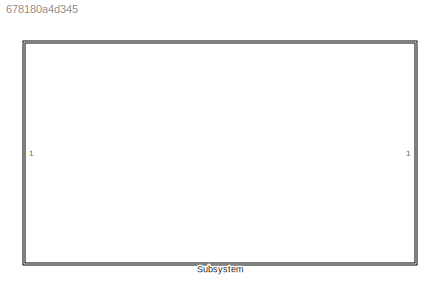
MODEL slx_678180a4d345
KIND model
CONFIG AbsTol = auto
CONFIG EnableMultiTasking = off
CONFIG FixedStep = auto
CONFIG MaxStep = auto
CONFIG MinStep = auto
CONFIG RelTol = 1e-3
CONFIG SampleTimeConstraint = Unconstrained
CONFIG SolverName = VariableStepAuto
CONFIG StartTime = 0.0
CONFIG StopTime = 0.5
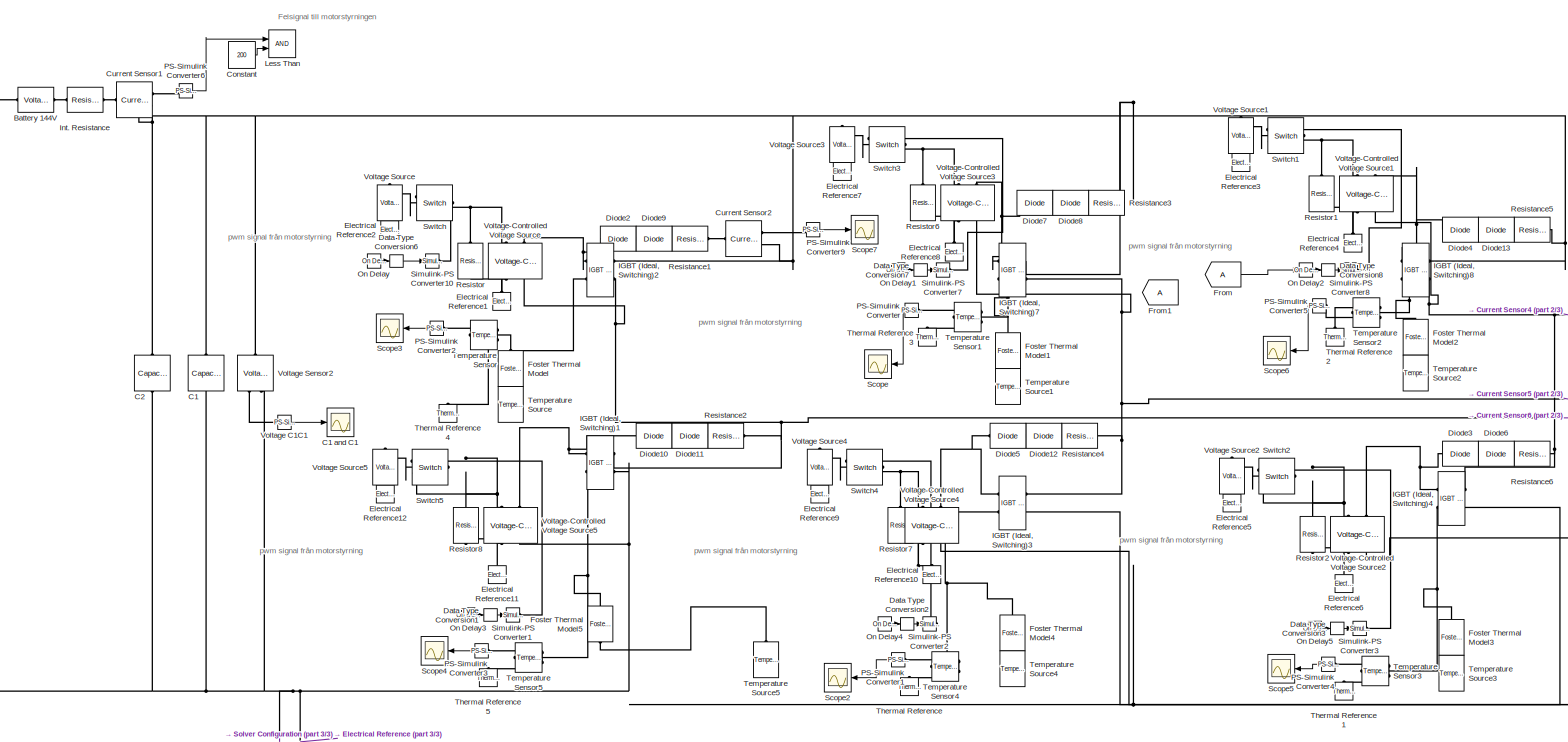
[diagram: Subsystem - part 1/3, most of the canvas]
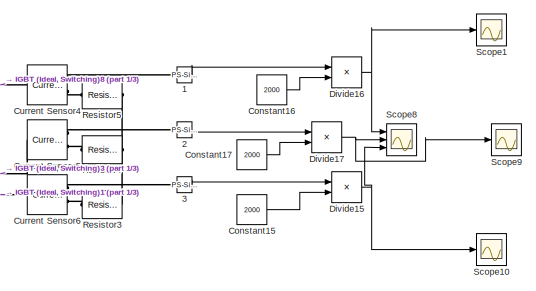
[diagram: Subsystem - part 2/3, middle right region]
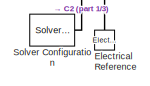
[diagram: Subsystem - part 3/3, bottom left region]
BLOCK [SubSystem] Subsystem
  Ports = []
  RequestExecContextInheritance = off
BLOCK [Reference] Subsystem/ Resistance1  REF=fl_lib/Electrical/Electrical Elements/Resistor
  Ports = [0, 0, 0, 0, 0, 1, 1]
  SourceBlock = fl_lib/Electrical/Electrical Elements/Resistor
  SourceProductBaseCode = SS
  SourceType = Resistor
BLOCK [Reference] Subsystem/ Resistance2  REF=fl_lib/Electrical/Electrical Elements/Resistor
  Ports = [0, 0, 0, 0, 0, 1, 1]
  SourceBlock = fl_lib/Electrical/Electrical Elements/Resistor
  SourceProductBaseCode = SS
  SourceType = Resistor
BLOCK [Reference] Subsystem/ Resistance3  REF=fl_lib/Electrical/Electrical Elements/Resistor
  Ports = [0, 0, 0, 0, 0, 1, 1]
  SourceBlock = fl_lib/Electrical/Electrical Elements/Resistor
  SourceProductBaseCode = SS
  SourceType = Resistor
BLOCK [Reference] Subsystem/ Resistance4  REF=fl_lib/Electrical/Electrical Elements/Resistor
  Ports = [0, 0, 0, 0, 0, 1, 1]
  SourceBlock = fl_lib/Electrical/Electrical Elements/Resistor
  SourceProductBaseCode = SS
  SourceType = Resistor
BLOCK [Reference] Subsystem/ Resistance5  REF=fl_lib/Electrical/Electrical Elements/Resistor
  Ports = [0, 0, 0, 0, 0, 1, 1]
  SourceBlock = fl_lib/Electrical/Electrical Elements/Resistor
  SourceProductBaseCode = SS
  SourceType = Resistor
BLOCK [Reference] Subsystem/ Resistance6  REF=fl_lib/Electrical/Electrical Elements/Resistor
  Ports = [0, 0, 0, 0, 0, 1, 1]
  SourceBlock = fl_lib/Electrical/Electrical Elements/Resistor
  SourceProductBaseCode = SS
  SourceType = Resistor
BLOCK [Reference] Subsystem/1  REF=nesl_utility/PS-Simulink
Converter
  Ports = [0, 1, 0, 0, 0, 1]
  SourceBlock = nesl_utility/PS-Simulink\nConverter
  SourceProductBaseCode = SS
  SourceType = PS-Simulink\nConverter
BLOCK [Reference] Subsystem/2  REF=nesl_utility/PS-Simulink
Converter
  Ports = [0, 1, 0, 0, 0, 1]
  SourceBlock = nesl_utility/PS-Simulink\nConverter
  SourceProductBaseCode = SS
  SourceType = PS-Simulink\nConverter
BLOCK [Reference] Subsystem/3  REF=nesl_utility/PS-Simulink
Converter
  Ports = [0, 1, 0, 0, 0, 1]
  SourceBlock = nesl_utility/PS-Simulink\nConverter
  SourceProductBaseCode = SS
  SourceType = PS-Simulink\nConverter
BLOCK [Reference] Subsystem/Battery 144V  REF=ee_lib/Sources/Voltage Source
  Ports = [0, 0, 0, 0, 0, 1, 1]
  SourceBlock = ee_lib/Sources/Voltage Source
  SourceProductBaseCode = PS
  SourceType = Voltage Source
BLOCK [Reference] Subsystem/C1  REF=ee_lib/Passive/Capacitor
  NameLocation = left
  Ports = [0, 0, 0, 0, 0, 1, 1]
  SourceBlock = ee_lib/Passive/Capacitor
  SourceProductBaseCode = PS
  SourceType = Capacitor
BLOCK [Scope] Subsystem/C1 and C1
  Floating = off
  NumInputPorts = 1
  Ports = [1]
  ScopeSpecificationString = Simulink.scopes.TimeScopeBlockCfg('CurrentConfiguration', extmgr.ConfigurationSet(extmgr.Configuration('Core','General UI',true),extmgr.Configuration('Core','Source UI',true),extmgr.Configuration('Sources','WiredSimulink',true,'DataLoggingVariableName','ScopeData1'),extmgr.Configuration('Visuals','Time Domain',true,'SerializedDisplays',{struct('MinYLimReal','33.74955','MaxYLimReal','232.10044','YL...<+1479ch>
BLOCK [Reference] Subsystem/C2  REF=ee_lib/Passive/Capacitor
  NameLocation = left
  Ports = [0, 0, 0, 0, 0, 1, 1]
  SourceBlock = ee_lib/Passive/Capacitor
  SourceProductBaseCode = PS
  SourceType = Capacitor
BLOCK [Constant] Subsystem/Constant
  Value = 200
BLOCK [Constant] Subsystem/Constant15
  Value = 2000
BLOCK [Constant] Subsystem/Constant16
  Value = 2000
BLOCK [Constant] Subsystem/Constant17
  Value = 2000
BLOCK [Reference] Subsystem/Current Sensor1  REF=fl_lib/Electrical/Electrical Sensors/Current Sensor
  Ports = [0, 0, 0, 0, 0, 1, 2]
  SourceBlock = fl_lib/Electrical/Electrical Sensors/Current Sensor
  SourceProductBaseCode = SS
  SourceType = Current Sensor
BLOCK [Reference] Subsystem/Current Sensor2  REF=fl_lib/Electrical/Electrical Sensors/Current Sensor
  Ports = [0, 0, 0, 0, 0, 1, 2]
  SourceBlock = fl_lib/Electrical/Electrical Sensors/Current Sensor
  SourceProductBaseCode = SS
  SourceType = Current Sensor
BLOCK [Reference] Subsystem/Current Sensor4  REF=fl_lib/Electrical/Electrical Sensors/Current Sensor
  Ports = [0, 0, 0, 0, 0, 1, 2]
  SourceBlock = fl_lib/Electrical/Electrical Sensors/Current Sensor
  SourceProductBaseCode = SS
  SourceType = Current Sensor
BLOCK [Reference] Subsystem/Current Sensor5  REF=fl_lib/Electrical/Electrical Sensors/Current Sensor
  Ports = [0, 0, 0, 0, 0, 1, 2]
  SourceBlock = fl_lib/Electrical/Electrical Sensors/Current Sensor
  SourceProductBaseCode = SS
  SourceType = Current Sensor
BLOCK [Reference] Subsystem/Current Sensor6  REF=fl_lib/Electrical/Electrical Sensors/Current Sensor
  Ports = [0, 0, 0, 0, 0, 1, 2]
  SourceBlock = fl_lib/Electrical/Electrical Sensors/Current Sensor
  SourceProductBaseCode = SS
  SourceType = Current Sensor
BLOCK [DataTypeConversion] Subsystem/Data Type Conversion1
  OutDataTypeStr = double
  RndMeth = Floor
  SaturateOnIntegerOverflow = off
BLOCK [DataTypeConversion] Subsystem/Data Type Conversion2
  OutDataTypeStr = double
  RndMeth = Floor
  SaturateOnIntegerOverflow = off
BLOCK [DataTypeConversion] Subsystem/Data Type Conversion3
  OutDataTypeStr = double
  RndMeth = Floor
  SaturateOnIntegerOverflow = off
BLOCK [DataTypeConversion] Subsystem/Data Type Conversion6
  OutDataTypeStr = double
  RndMeth = Floor
  SaturateOnIntegerOverflow = off
BLOCK [DataTypeConversion] Subsystem/Data Type Conversion7
  OutDataTypeStr = double
  RndMeth = Floor
  SaturateOnIntegerOverflow = off
BLOCK [DataTypeConversion] Subsystem/Data Type Conversion8
  OutDataTypeStr = double
  RndMeth = Floor
  SaturateOnIntegerOverflow = off
BLOCK [Reference] Subsystem/Diode10  REF=ee_lib/Semiconductors &
Converters/Diode
  Ports = [0, 0, 0, 0, 0, 1, 1]
  SourceBlock = ee_lib/Semiconductors &\nConverters/Diode
  SourceProductBaseCode = PS
  SourceType = Diode
BLOCK [Reference] Subsystem/Diode11  REF=ee_lib/Semiconductors &
Converters/Diode
  NameLocation = top
  Ports = [0, 0, 0, 0, 0, 1, 1]
  SourceBlock = ee_lib/Semiconductors &\nConverters/Diode
  SourceProductBaseCode = PS
  SourceType = Diode
BLOCK [Reference] Subsystem/Diode12  REF=ee_lib/Semiconductors &
Converters/Diode
  NameLocation = top
  Ports = [0, 0, 0, 0, 0, 1, 1]
  SourceBlock = ee_lib/Semiconductors &\nConverters/Diode
  SourceProductBaseCode = PS
  SourceType = Diode
BLOCK [Reference] Subsystem/Diode13  REF=ee_lib/Semiconductors &
Converters/Diode
  NameLocation = top
  Ports = [0, 0, 0, 0, 0, 1, 1]
  SourceBlock = ee_lib/Semiconductors &\nConverters/Diode
  SourceProductBaseCode = PS
  SourceType = Diode
BLOCK [Reference] Subsystem/Diode2  REF=ee_lib/Semiconductors &
Converters/Diode
  Ports = [0, 0, 0, 0, 0, 1, 1]
  SourceBlock = ee_lib/Semiconductors &\nConverters/Diode
  SourceProductBaseCode = PS
  SourceType = Diode
BLOCK [Reference] Subsystem/Diode3  REF=ee_lib/Semiconductors &
Converters/Diode
  Ports = [0, 0, 0, 0, 0, 1, 1]
  SourceBlock = ee_lib/Semiconductors &\nConverters/Diode
  SourceProductBaseCode = PS
  SourceType = Diode
BLOCK [Reference] Subsystem/Diode4  REF=ee_lib/Semiconductors &
Converters/Diode
  Ports = [0, 0, 0, 0, 0, 1, 1]
  SourceBlock = ee_lib/Semiconductors &\nConverters/Diode
  SourceProductBaseCode = PS
  SourceType = Diode
BLOCK [Reference] Subsystem/Diode5  REF=ee_lib/Semiconductors &
Converters/Diode
  Ports = [0, 0, 0, 0, 0, 1, 1]
  SourceBlock = ee_lib/Semiconductors &\nConverters/Diode
  SourceProductBaseCode = PS
  SourceType = Diode
BLOCK [Reference] Subsystem/Diode6  REF=ee_lib/Semiconductors &
Converters/Diode
  NameLocation = top
  Ports = [0, 0, 0, 0, 0, 1, 1]
  SourceBlock = ee_lib/Semiconductors &\nConverters/Diode
  SourceProductBaseCode = PS
  SourceType = Diode
BLOCK [Reference] Subsystem/Diode7  REF=ee_lib/Semiconductors &
Converters/Diode
  Ports = [0, 0, 0, 0, 0, 1, 1]
  SourceBlock = ee_lib/Semiconductors &\nConverters/Diode
  SourceProductBaseCode = PS
  SourceType = Diode
BLOCK [Reference] Subsystem/Diode8  REF=ee_lib/Semiconductors &
Converters/Diode
  NameLocation = top
  Ports = [0, 0, 0, 0, 0, 1, 1]
  SourceBlock = ee_lib/Semiconductors &\nConverters/Diode
  SourceProductBaseCode = PS
  SourceType = Diode
BLOCK [Reference] Subsystem/Diode9  REF=ee_lib/Semiconductors &
Converters/Diode
  NameLocation = top
  Ports = [0, 0, 0, 0, 0, 1, 1]
  SourceBlock = ee_lib/Semiconductors &\nConverters/Diode
  SourceProductBaseCode = PS
  SourceType = Diode
BLOCK [Product] Subsystem/Divide15
  Inputs = */
  Ports = [2, 1]
BLOCK [Product] Subsystem/Divide16
  Inputs = */
  Ports = [2, 1]
BLOCK [Product] Subsystem/Divide17
  Inputs = */
  Ports = [2, 1]
BLOCK [Reference] Subsystem/Electrical Reference  REF=fl_lib/Electrical/Electrical Elements/Electrical Reference
  NameLocation = right
  Ports = [0, 0, 0, 0, 0, 1]
  SourceBlock = fl_lib/Electrical/Electrical Elements/Electrical Reference
  SourceProductBaseCode = SS
  SourceType = Electrical Reference
BLOCK [Reference] Subsystem/Electrical Reference1  REF=fl_lib/Electrical/Electrical Elements/Electrical Reference
  NameLocation = right
  Ports = [0, 0, 0, 0, 0, 1]
  SourceBlock = fl_lib/Electrical/Electrical Elements/Electrical Reference
  SourceProductBaseCode = SS
  SourceType = Electrical Reference
BLOCK [Reference] Subsystem/Electrical Reference10  REF=fl_lib/Electrical/Electrical Elements/Electrical Reference
  NameLocation = right
  Ports = [0, 0, 0, 0, 0, 1]
  SourceBlock = fl_lib/Electrical/Electrical Elements/Electrical Reference
  SourceProductBaseCode = SS
  SourceType = Electrical Reference
BLOCK [Reference] Subsystem/Electrical Reference11  REF=fl_lib/Electrical/Electrical Elements/Electrical Reference
  NameLocation = right
  Ports = [0, 0, 0, 0, 0, 1]
  SourceBlock = fl_lib/Electrical/Electrical Elements/Electrical Reference
  SourceProductBaseCode = SS
  SourceType = Electrical Reference
BLOCK [Reference] Subsystem/Electrical Reference12  REF=fl_lib/Electrical/Electrical Elements/Electrical Reference
  NameLocation = right
  Ports = [0, 0, 0, 0, 0, 1]
  SourceBlock = fl_lib/Electrical/Electrical Elements/Electrical Reference
  SourceProductBaseCode = SS
  SourceType = Electrical Reference
BLOCK [Reference] Subsystem/Electrical Reference2  REF=fl_lib/Electrical/Electrical Elements/Electrical Reference
  NameLocation = right
  Ports = [0, 0, 0, 0, 0, 1]
  SourceBlock = fl_lib/Electrical/Electrical Elements/Electrical Reference
  SourceProductBaseCode = SS
  SourceType = Electrical Reference
BLOCK [Reference] Subsystem/Electrical Reference3  REF=fl_lib/Electrical/Electrical Elements/Electrical Reference
  NameLocation = right
  Ports = [0, 0, 0, 0, 0, 1]
  SourceBlock = fl_lib/Electrical/Electrical Elements/Electrical Reference
  SourceProductBaseCode = SS
  SourceType = Electrical Reference
BLOCK [Reference] Subsystem/Electrical Reference4  REF=fl_lib/Electrical/Electrical Elements/Electrical Reference
  NameLocation = right
  Ports = [0, 0, 0, 0, 0, 1]
  SourceBlock = fl_lib/Electrical/Electrical Elements/Electrical Reference
  SourceProductBaseCode = SS
  SourceType = Electrical Reference
BLOCK [Reference] Subsystem/Electrical Reference5  REF=fl_lib/Electrical/Electrical Elements/Electrical Reference
  NameLocation = right
  Ports = [0, 0, 0, 0, 0, 1]
  SourceBlock = fl_lib/Electrical/Electrical Elements/Electrical Reference
  SourceProductBaseCode = SS
  SourceType = Electrical Reference
BLOCK [Reference] Subsystem/Electrical Reference6  REF=fl_lib/Electrical/Electrical Elements/Electrical Reference
  NameLocation = right
  Ports = [0, 0, 0, 0, 0, 1]
  SourceBlock = fl_lib/Electrical/Electrical Elements/Electrical Reference
  SourceProductBaseCode = SS
  SourceType = Electrical Reference
BLOCK [Reference] Subsystem/Electrical Reference7  REF=fl_lib/Electrical/Electrical Elements/Electrical Reference
  NameLocation = right
  Ports = [0, 0, 0, 0, 0, 1]
  SourceBlock = fl_lib/Electrical/Electrical Elements/Electrical Reference
  SourceProductBaseCode = SS
  SourceType = Electrical Reference
BLOCK [Reference] Subsystem/Electrical Reference8  REF=fl_lib/Electrical/Electrical Elements/Electrical Reference
  NameLocation = right
  Ports = [0, 0, 0, 0, 0, 1]
  SourceBlock = fl_lib/Electrical/Electrical Elements/Electrical Reference
  SourceProductBaseCode = SS
  SourceType = Electrical Reference
BLOCK [Reference] Subsystem/Electrical Reference9  REF=fl_lib/Electrical/Electrical Elements/Electrical Reference
  NameLocation = right
  Ports = [0, 0, 0, 0, 0, 1]
  SourceBlock = fl_lib/Electrical/Electrical Elements/Electrical Reference
  SourceProductBaseCode = SS
  SourceType = Electrical Reference
BLOCK [Reference] Subsystem/Foster Thermal Model  REF=ee_lib/Passive/Thermal/Foster Thermal Model
  NameLocation = left
  Ports = [0, 0, 0, 0, 0, 1, 1]
  SourceBlock = ee_lib/Passive/Thermal/Foster Thermal Model
  SourceProductBaseCode = PS
  SourceType = Foster Thermal Model
BLOCK [Reference] Subsystem/Foster Thermal Model1  REF=ee_lib/Passive/Thermal/Foster Thermal Model
  NameLocation = left
  Ports = [0, 0, 0, 0, 0, 1, 1]
  SourceBlock = ee_lib/Passive/Thermal/Foster Thermal Model
  SourceProductBaseCode = PS
  SourceType = Foster Thermal Model
BLOCK [Reference] Subsystem/Foster Thermal Model2  REF=ee_lib/Passive/Thermal/Foster Thermal Model
  NameLocation = left
  Ports = [0, 0, 0, 0, 0, 1, 1]
  SourceBlock = ee_lib/Passive/Thermal/Foster Thermal Model
  SourceProductBaseCode = PS
  SourceType = Foster Thermal Model
BLOCK [Reference] Subsystem/Foster Thermal Model3  REF=ee_lib/Passive/Thermal/Foster Thermal Model
  NameLocation = left
  Ports = [0, 0, 0, 0, 0, 1, 1]
  SourceBlock = ee_lib/Passive/Thermal/Foster Thermal Model
  SourceProductBaseCode = PS
  SourceType = Foster Thermal Model
BLOCK [Reference] Subsystem/Foster Thermal Model4  REF=ee_lib/Passive/Thermal/Foster Thermal Model
  NameLocation = left
  Ports = [0, 0, 0, 0, 0, 1, 1]
  SourceBlock = ee_lib/Passive/Thermal/Foster Thermal Model
  SourceProductBaseCode = PS
  SourceType = Foster Thermal Model
BLOCK [Reference] Subsystem/Foster Thermal Model5  REF=ee_lib/Passive/Thermal/Foster Thermal Model
  NameLocation = left
  Ports = [0, 0, 0, 0, 0, 1, 1]
  SourceBlock = ee_lib/Passive/Thermal/Foster Thermal Model
  SourceProductBaseCode = PS
  SourceType = Foster Thermal Model
BLOCK [From] Subsystem/From
BLOCK [From] Subsystem/From1
BLOCK [Reference] Subsystem/IGBT (Ideal, Switching)1  REF=ee_lib/Semiconductors &
Converters/IGBT
(Ideal,
Switching)
  Ports = [0, 0, 0, 0, 0, 2, 2]
  SourceBlock = ee_lib/Semiconductors &\nConverters/IGBT\n(Ideal,\nSwitching)
  SourceProductBaseCode = PS
  SourceType = IGBT\n(Ideal,\nSwitching)
BLOCK [Reference] Subsystem/IGBT (Ideal, Switching)2  REF=ee_lib/Semiconductors &
Converters/IGBT
(Ideal,
Switching)
  Ports = [0, 0, 0, 0, 0, 2, 2]
  SourceBlock = ee_lib/Semiconductors &\nConverters/IGBT\n(Ideal,\nSwitching)
  SourceProductBaseCode = PS
  SourceType = IGBT\n(Ideal,\nSwitching)
BLOCK [Reference] Subsystem/IGBT (Ideal, Switching)3  REF=ee_lib/Semiconductors &
Converters/IGBT
(Ideal,
Switching)
  Ports = [0, 0, 0, 0, 0, 2, 2]
  SourceBlock = ee_lib/Semiconductors &\nConverters/IGBT\n(Ideal,\nSwitching)
  SourceProductBaseCode = PS
  SourceType = IGBT\n(Ideal,\nSwitching)
BLOCK [Reference] Subsystem/IGBT (Ideal, Switching)4  REF=ee_lib/Semiconductors &
Converters/IGBT
(Ideal,
Switching)
  Ports = [0, 0, 0, 0, 0, 2, 2]
  SourceBlock = ee_lib/Semiconductors &\nConverters/IGBT\n(Ideal,\nSwitching)
  SourceProductBaseCode = PS
  SourceType = IGBT\n(Ideal,\nSwitching)
BLOCK [Reference] Subsystem/IGBT (Ideal, Switching)7  REF=ee_lib/Semiconductors &
Converters/IGBT
(Ideal,
Switching)
  Ports = [0, 0, 0, 0, 0, 2, 2]
  SourceBlock = ee_lib/Semiconductors &\nConverters/IGBT\n(Ideal,\nSwitching)
  SourceProductBaseCode = PS
  SourceType = IGBT\n(Ideal,\nSwitching)
BLOCK [Reference] Subsystem/IGBT (Ideal, Switching)8  REF=ee_lib/Semiconductors &
Converters/IGBT
(Ideal,
Switching)
  Ports = [0, 0, 0, 0, 0, 2, 2]
  SourceBlock = ee_lib/Semiconductors &\nConverters/IGBT\n(Ideal,\nSwitching)
  SourceProductBaseCode = PS
  SourceType = IGBT\n(Ideal,\nSwitching)
BLOCK [Reference] Subsystem/Int. Resistance  REF=fl_lib/Electrical/Electrical Elements/Resistor
  Ports = [0, 0, 0, 0, 0, 1, 1]
  SourceBlock = fl_lib/Electrical/Electrical Elements/Resistor
  SourceProductBaseCode = SS
  SourceType = Resistor
BLOCK [RelationalOperator] Subsystem/Less Than
  InputSameDT = off
  OutDataTypeStr = boolean
  Ports = [2, 1]
  RndMeth = Simplest
BLOCK [Reference] Subsystem/On Delay  REF=powerlib_meascontrol/Logic/On Delay
  Ports = [1, 1]
  SourceBlock = powerlib_meascontrol/Logic/On Delay
  SourceProductBaseCode = PS
  SourceType = On/Off Delay
BLOCK [Reference] Subsystem/On Delay1  REF=powerlib_meascontrol/Logic/On Delay
  Ports = [1, 1]
  SourceBlock = powerlib_meascontrol/Logic/On Delay
  SourceProductBaseCode = PS
  SourceType = On/Off Delay
BLOCK [Reference] Subsystem/On Delay2  REF=powerlib_meascontrol/Logic/On Delay
  Ports = [1, 1]
  SourceBlock = powerlib_meascontrol/Logic/On Delay
  SourceProductBaseCode = PS
  SourceType = On/Off Delay
BLOCK [Reference] Subsystem/On Delay3  REF=powerlib_meascontrol/Logic/On Delay
  Ports = [1, 1]
  SourceBlock = powerlib_meascontrol/Logic/On Delay
  SourceProductBaseCode = PS
  SourceType = On/Off Delay
BLOCK [Reference] Subsystem/On Delay4  REF=powerlib_meascontrol/Logic/On Delay
  Ports = [1, 1]
  SourceBlock = powerlib_meascontrol/Logic/On Delay
  SourceProductBaseCode = PS
  SourceType = On/Off Delay
BLOCK [Reference] Subsystem/On Delay5  REF=powerlib_meascontrol/Logic/On Delay
  Ports = [1, 1]
  SourceBlock = powerlib_meascontrol/Logic/On Delay
  SourceProductBaseCode = PS
  SourceType = On/Off Delay
BLOCK [Reference] Subsystem/PS-Simulink Converter  REF=nesl_utility/PS-Simulink
Converter
  NameLocation = top
  Ports = [0, 1, 0, 0, 0, 1]
  SourceBlock = nesl_utility/PS-Simulink\nConverter
  SourceProductBaseCode = SS
  SourceType = PS-Simulink\nConverter
BLOCK [Reference] Subsystem/PS-Simulink Converter1  REF=nesl_utility/PS-Simulink
Converter
  NameLocation = top
  Ports = [0, 1, 0, 0, 0, 1]
  SourceBlock = nesl_utility/PS-Simulink\nConverter
  SourceProductBaseCode = SS
  SourceType = PS-Simulink\nConverter
BLOCK [Reference] Subsystem/PS-Simulink Converter2  REF=nesl_utility/PS-Simulink
Converter
  NameLocation = top
  Ports = [0, 1, 0, 0, 0, 1]
  SourceBlock = nesl_utility/PS-Simulink\nConverter
  SourceProductBaseCode = SS
  SourceType = PS-Simulink\nConverter
BLOCK [Reference] Subsystem/PS-Simulink Converter3  REF=nesl_utility/PS-Simulink
Converter
  NameLocation = top
  Ports = [0, 1, 0, 0, 0, 1]
  SourceBlock = nesl_utility/PS-Simulink\nConverter
  SourceProductBaseCode = SS
  SourceType = PS-Simulink\nConverter
BLOCK [Reference] Subsystem/PS-Simulink Converter4  REF=nesl_utility/PS-Simulink
Converter
  NameLocation = top
  Ports = [0, 1, 0, 0, 0, 1]
  SourceBlock = nesl_utility/PS-Simulink\nConverter
  SourceProductBaseCode = SS
  SourceType = PS-Simulink\nConverter
BLOCK [Reference] Subsystem/PS-Simulink Converter5  REF=nesl_utility/PS-Simulink
Converter
  NameLocation = top
  Ports = [0, 1, 0, 0, 0, 1]
  SourceBlock = nesl_utility/PS-Simulink\nConverter
  SourceProductBaseCode = SS
  SourceType = PS-Simulink\nConverter
BLOCK [Reference] Subsystem/PS-Simulink Converter6  REF=nesl_utility/PS-Simulink
Converter
  Ports = [0, 1, 0, 0, 0, 1]
  SourceBlock = nesl_utility/PS-Simulink\nConverter
  SourceProductBaseCode = SS
  SourceType = PS-Simulink\nConverter
BLOCK [Reference] Subsystem/PS-Simulink Converter9  REF=nesl_utility/PS-Simulink
Converter
  Ports = [0, 1, 0, 0, 0, 1]
  SourceBlock = nesl_utility/PS-Simulink\nConverter
  SourceProductBaseCode = SS
  SourceType = PS-Simulink\nConverter
BLOCK [Reference] Subsystem/Resistor  REF=fl_lib/Electrical/Electrical Elements/Resistor
  NameLocation = left
  Ports = [0, 0, 0, 0, 0, 1, 1]
  SourceBlock = fl_lib/Electrical/Electrical Elements/Resistor
  SourceProductBaseCode = SS
  SourceType = Resistor
BLOCK [Reference] Subsystem/Resistor1  REF=fl_lib/Electrical/Electrical Elements/Resistor
  NameLocation = left
  Ports = [0, 0, 0, 0, 0, 1, 1]
  SourceBlock = fl_lib/Electrical/Electrical Elements/Resistor
  SourceProductBaseCode = SS
  SourceType = Resistor
BLOCK [Reference] Subsystem/Resistor2  REF=fl_lib/Electrical/Electrical Elements/Resistor
  NameLocation = left
  Ports = [0, 0, 0, 0, 0, 1, 1]
  SourceBlock = fl_lib/Electrical/Electrical Elements/Resistor
  SourceProductBaseCode = SS
  SourceType = Resistor
BLOCK [Reference] Subsystem/Resistor3  REF=ee_lib/Passive/Resistor
  Ports = [0, 0, 0, 0, 0, 1, 1]
  SourceBlock = ee_lib/Passive/Resistor
  SourceProductBaseCode = PS
  SourceType = Resistor
BLOCK [Reference] Subsystem/Resistor4  REF=ee_lib/Passive/Resistor
  Ports = [0, 0, 0, 0, 0, 1, 1]
  SourceBlock = ee_lib/Passive/Resistor
  SourceProductBaseCode = PS
  SourceType = Resistor
BLOCK [Reference] Subsystem/Resistor5  REF=ee_lib/Passive/Resistor
  Ports = [0, 0, 0, 0, 0, 1, 1]
  SourceBlock = ee_lib/Passive/Resistor
  SourceProductBaseCode = PS
  SourceType = Resistor
BLOCK [Reference] Subsystem/Resistor6  REF=fl_lib/Electrical/Electrical Elements/Resistor
  NameLocation = left
  Ports = [0, 0, 0, 0, 0, 1, 1]
  SourceBlock = fl_lib/Electrical/Electrical Elements/Resistor
  SourceProductBaseCode = SS
  SourceType = Resistor
BLOCK [Reference] Subsystem/Resistor7  REF=fl_lib/Electrical/Electrical Elements/Resistor
  NameLocation = left
  Ports = [0, 0, 0, 0, 0, 1, 1]
  SourceBlock = fl_lib/Electrical/Electrical Elements/Resistor
  SourceProductBaseCode = SS
  SourceType = Resistor
BLOCK [Reference] Subsystem/Resistor8  REF=fl_lib/Electrical/Electrical Elements/Resistor
  NameLocation = left
  Ports = [0, 0, 0, 0, 0, 1, 1]
  SourceBlock = fl_lib/Electrical/Electrical Elements/Resistor
  SourceProductBaseCode = SS
  SourceType = Resistor
BLOCK [Scope] Subsystem/Scope
  Floating = off
  NameLocation = top
  NumInputPorts = 1
  Ports = [1]
  ScopeSpecificationString = Simulink.scopes.TimeScopeBlockCfg('CurrentConfiguration', extmgr.ConfigurationSet(extmgr.Configuration('Core','General UI',true),extmgr.Configuration('Core','Source UI',true),extmgr.Configuration('Sources','WiredSimulink',true,'DataLoggingVariableName','ScopeData2'),extmgr.Configuration('Visuals','Time Domain',true,'SerializedDisplays',{struct('MinYLimReal','296.26492','MaxYLimReal','315.11723','Y...<+1419ch>
BLOCK [Scope] Subsystem/Scope1
  Floating = off
  NumInputPorts = 1
  Ports = [1]
  ScopeSpecificationString = Simulink.scopes.TimeScopeBlockCfg('CurrentConfiguration', extmgr.ConfigurationSet(extmgr.Configuration('Core','General UI',true),extmgr.Configuration('Core','Source UI',true),extmgr.Configuration('Sources','WiredSimulink',true,'DataLoggingVariableName','ScopeData2'),extmgr.Configuration('Visuals','Time Domain',true,'SerializedDisplays',{struct('MinYLimReal','0.000000000000000004354','MaxYLimReal',...<+1537ch>
BLOCK [Scope] Subsystem/Scope10
  Floating = off
  NumInputPorts = 1
  Ports = [1]
  ScopeSpecificationString = Simulink.scopes.TimeScopeBlockCfg('CurrentConfiguration', extmgr.ConfigurationSet(extmgr.Configuration('Core','General UI',true),extmgr.Configuration('Core','Source UI',true),extmgr.Configuration('Sources','WiredSimulink',true,'DataLoggingVariableName','ScopeData4'),extmgr.Configuration('Visuals','Time Domain',true,'SerializedDisplays',{struct('MinYLimReal','-0.11574','MaxYLimReal','0.11574','YLab...<+1367ch>
BLOCK [Scope] Subsystem/Scope2
  Floating = off
  NameLocation = top
  NumInputPorts = 1
  Ports = [1]
  ScopeSpecificationString = Simulink.scopes.TimeScopeBlockCfg('CurrentConfiguration', extmgr.ConfigurationSet(extmgr.Configuration('Core','General UI',true),extmgr.Configuration('Core','Source UI',true),extmgr.Configuration('Sources','WiredSimulink',true,'DataLoggingVariableName','ScopeData3'),extmgr.Configuration('Visuals','Time Domain',true,'SerializedDisplays',{struct('MinYLimReal','298.07554','MaxYLimReal','298.82011','Y...<+1420ch>
BLOCK [Scope] Subsystem/Scope3
  Floating = off
  NameLocation = top
  NumInputPorts = 1
  Ports = [1]
  ScopeSpecificationString = Simulink.scopes.TimeScopeBlockCfg('CurrentConfiguration', extmgr.ConfigurationSet(extmgr.Configuration('Core','General UI',true),extmgr.Configuration('Core','Source UI',true),extmgr.Configuration('Sources','WiredSimulink',true,'DataLoggingVariableName','ScopeData4'),extmgr.Configuration('Visuals','Time Domain',true,'SerializedDisplays',{struct('MinYLimReal','285.85493','MaxYLimReal','358.8114','YL...<+1433ch>
BLOCK [Scope] Subsystem/Scope4
  Floating = off
  NameLocation = top
  NumInputPorts = 1
  Ports = [1]
  ScopeSpecificationString = Simulink.scopes.TimeScopeBlockCfg('CurrentConfiguration', extmgr.ConfigurationSet(extmgr.Configuration('Core','General UI',true),extmgr.Configuration('Core','Source UI',true),extmgr.Configuration('Sources','WiredSimulink',true,'DataLoggingVariableName','ScopeData5'),extmgr.Configuration('Visuals','Time Domain',true,'SerializedDisplays',{struct('MinYLimReal','-40385.94364','MaxYLimReal','366473.492...<+1415ch>
BLOCK [Scope] Subsystem/Scope5
  Floating = off
  NameLocation = top
  NumInputPorts = 1
  Ports = [1]
  ScopeSpecificationString = Simulink.scopes.TimeScopeBlockCfg('CurrentConfiguration', extmgr.ConfigurationSet(extmgr.Configuration('Core','General UI',true),extmgr.Configuration('Core','Source UI',true),extmgr.Configuration('Sources','WiredSimulink',true,'DataLoggingVariableName','ScopeData6'),extmgr.Configuration('Visuals','Time Domain',true,'SerializedDisplays',{struct('MinYLimReal','-41420.10961','MaxYLimReal','375780.986...<+1415ch>
BLOCK [Scope] Subsystem/Scope6
  Floating = off
  NameLocation = top
  NumInputPorts = 1
  Ports = [1]
  ScopeSpecificationString = Simulink.scopes.TimeScopeBlockCfg('CurrentConfiguration', extmgr.ConfigurationSet(extmgr.Configuration('Core','General UI',true),extmgr.Configuration('Core','Source UI',true),extmgr.Configuration('Sources','WiredSimulink',true,'DataLoggingVariableName','ScopeData7'),extmgr.Configuration('Visuals','Time Domain',true,'SerializedDisplays',{struct('MinYLimReal','-39622.21516','MaxYLimReal','359599.936...<+1415ch>
BLOCK [Scope] Subsystem/Scope7
  Floating = off
  NumInputPorts = 1
  Ports = [1]
  ScopeSpecificationString = Simulink.scopes.TimeScopeBlockCfg('CurrentConfiguration', extmgr.ConfigurationSet(extmgr.Configuration('Core','General UI',true),extmgr.Configuration('Core','Source UI',true),extmgr.Configuration('Sources','WiredSimulink',true,'DataLoggingVariableName','ScopeData1'),extmgr.Configuration('Visuals','Time Domain',true,'SerializedDisplays',{struct('MinYLimReal','-0.94326','MaxYLimReal','0.29894','YLab...<+1456ch>
BLOCK [Scope] Subsystem/Scope8
  Floating = off
  NumInputPorts = 3
  Ports = [3]
  ScopeSpecificationString = Simulink.scopes.TimeScopeBlockCfg('CurrentConfiguration', extmgr.ConfigurationSet(extmgr.Configuration('Core','General UI',true),extmgr.Configuration('Core','Source UI',true),extmgr.Configuration('Sources','WiredSimulink',true,'DataLoggingVariableName','ScopeData1'),extmgr.Configuration('Visuals','Time Domain',true,'SerializedDisplays',{struct('MinYLimReal','0.01072','MaxYLimReal','0.01871','YLabe...<+1570ch>
BLOCK [Scope] Subsystem/Scope9
  Floating = off
  NumInputPorts = 1
  Ports = [1]
  ScopeSpecificationString = Simulink.scopes.TimeScopeBlockCfg('CurrentConfiguration', extmgr.ConfigurationSet(extmgr.Configuration('Core','General UI',true),extmgr.Configuration('Core','Source UI',true),extmgr.Configuration('Sources','WiredSimulink',true,'DataLoggingVariableName','ScopeData3'),extmgr.Configuration('Visuals','Time Domain',true,'SerializedDisplays',{struct('MinYLimReal','-0.11574','MaxYLimReal','0.11574','YLab...<+1367ch>
BLOCK [Reference] Subsystem/Simulink-PS Converter1  REF=nesl_utility/Simulink-PS
Converter
  Ports = [1, 0, 0, 0, 0, 0, 1]
  SourceBlock = nesl_utility/Simulink-PS\nConverter
  SourceProductBaseCode = SS
  SourceType = Simulink-PS\nConverter
BLOCK [Reference] Subsystem/Simulink-PS Converter10  REF=nesl_utility/Simulink-PS
Converter
  Ports = [1, 0, 0, 0, 0, 0, 1]
  SourceBlock = nesl_utility/Simulink-PS\nConverter
  SourceProductBaseCode = SS
  SourceType = Simulink-PS\nConverter
BLOCK [Reference] Subsystem/Simulink-PS Converter2  REF=nesl_utility/Simulink-PS
Converter
  Ports = [1, 0, 0, 0, 0, 0, 1]
  SourceBlock = nesl_utility/Simulink-PS\nConverter
  SourceProductBaseCode = SS
  SourceType = Simulink-PS\nConverter
BLOCK [Reference] Subsystem/Simulink-PS Converter3  REF=nesl_utility/Simulink-PS
Converter
  Ports = [1, 0, 0, 0, 0, 0, 1]
  SourceBlock = nesl_utility/Simulink-PS\nConverter
  SourceProductBaseCode = SS
  SourceType = Simulink-PS\nConverter
BLOCK [Reference] Subsystem/Simulink-PS Converter7  REF=nesl_utility/Simulink-PS
Converter
  Ports = [1, 0, 0, 0, 0, 0, 1]
  SourceBlock = nesl_utility/Simulink-PS\nConverter
  SourceProductBaseCode = SS
  SourceType = Simulink-PS\nConverter
BLOCK [Reference] Subsystem/Simulink-PS Converter8  REF=nesl_utility/Simulink-PS
Converter
  Ports = [1, 0, 0, 0, 0, 0, 1]
  SourceBlock = nesl_utility/Simulink-PS\nConverter
  SourceProductBaseCode = SS
  SourceType = Simulink-PS\nConverter
BLOCK [Reference] Subsystem/Solver Configuration  REF=nesl_utility/Solver
Configuration
  Ports = [0, 0, 0, 0, 0, 0, 1]
  SourceBlock = nesl_utility/Solver\nConfiguration
  SourceProductBaseCode = SS
  SourceType = Solver\nConfiguration
BLOCK [Reference] Subsystem/Switch  REF=fl_lib/Electrical/Electrical Elements/Switch
  NameLocation = top
  Ports = [0, 0, 0, 0, 0, 1, 2]
  SourceBlock = fl_lib/Electrical/Electrical Elements/Switch
  SourceProductBaseCode = SS
  SourceType = Switch
BLOCK [Reference] Subsystem/Switch1  REF=fl_lib/Electrical/Electrical Elements/Switch
  NameLocation = top
  Ports = [0, 0, 0, 0, 0, 1, 2]
  SourceBlock = fl_lib/Electrical/Electrical Elements/Switch
  SourceProductBaseCode = SS
  SourceType = Switch
BLOCK [Reference] Subsystem/Switch2  REF=fl_lib/Electrical/Electrical Elements/Switch
  NameLocation = top
  Ports = [0, 0, 0, 0, 0, 1, 2]
  SourceBlock = fl_lib/Electrical/Electrical Elements/Switch
  SourceProductBaseCode = SS
  SourceType = Switch
BLOCK [Reference] Subsystem/Switch3  REF=fl_lib/Electrical/Electrical Elements/Switch
  NameLocation = top
  Ports = [0, 0, 0, 0, 0, 1, 2]
  SourceBlock = fl_lib/Electrical/Electrical Elements/Switch
  SourceProductBaseCode = SS
  SourceType = Switch
BLOCK [Reference] Subsystem/Switch4  REF=fl_lib/Electrical/Electrical Elements/Switch
  NameLocation = top
  Ports = [0, 0, 0, 0, 0, 1, 2]
  SourceBlock = fl_lib/Electrical/Electrical Elements/Switch
  SourceProductBaseCode = SS
  SourceType = Switch
BLOCK [Reference] Subsystem/Switch5  REF=fl_lib/Electrical/Electrical Elements/Switch
  NameLocation = top
  Ports = [0, 0, 0, 0, 0, 1, 2]
  SourceBlock = fl_lib/Electrical/Electrical Elements/Switch
  SourceProductBaseCode = SS
  SourceType = Switch
BLOCK [Reference] Subsystem/Temperature Sensor  REF=fl_lib/Thermal/Thermal Sensors/Temperature Sensor
  NameLocation = top
  Ports = [0, 0, 0, 0, 0, 1, 2]
  SourceBlock = fl_lib/Thermal/Thermal Sensors/Temperature Sensor
  SourceProductBaseCode = SS
  SourceType = Temperature Sensor
BLOCK [Reference] Subsystem/Temperature Sensor1  REF=fl_lib/Thermal/Thermal Sensors/Temperature Sensor
  NameLocation = top
  Ports = [0, 0, 0, 0, 0, 1, 2]
  SourceBlock = fl_lib/Thermal/Thermal Sensors/Temperature Sensor
  SourceProductBaseCode = SS
  SourceType = Temperature Sensor
BLOCK [Reference] Subsystem/Temperature Sensor2  REF=fl_lib/Thermal/Thermal Sensors/Temperature Sensor
  NameLocation = top
  Ports = [0, 0, 0, 0, 0, 1, 2]
  SourceBlock = fl_lib/Thermal/Thermal Sensors/Temperature Sensor
  SourceProductBaseCode = SS
  SourceType = Temperature Sensor
BLOCK [Reference] Subsystem/Temperature Sensor3  REF=fl_lib/Thermal/Thermal Sensors/Temperature Sensor
  NameLocation = top
  Ports = [0, 0, 0, 0, 0, 1, 2]
  SourceBlock = fl_lib/Thermal/Thermal Sensors/Temperature Sensor
  SourceProductBaseCode = SS
  SourceType = Temperature Sensor
BLOCK [Reference] Subsystem/Temperature Sensor4  REF=fl_lib/Thermal/Thermal Sensors/Temperature Sensor
  NameLocation = top
  Ports = [0, 0, 0, 0, 0, 1, 2]
  SourceBlock = fl_lib/Thermal/Thermal Sensors/Temperature Sensor
  SourceProductBaseCode = SS
  SourceType = Temperature Sensor
BLOCK [Reference] Subsystem/Temperature Sensor5  REF=fl_lib/Thermal/Thermal Sensors/Temperature Sensor
  NameLocation = top
  Ports = [0, 0, 0, 0, 0, 1, 2]
  SourceBlock = fl_lib/Thermal/Thermal Sensors/Temperature Sensor
  SourceProductBaseCode = SS
  SourceType = Temperature Sensor
BLOCK [Reference] Subsystem/Temperature Source  REF=fl_lib/Thermal/Thermal Sources/Temperature Source
  NameLocation = right
  Ports = [0, 0, 0, 0, 0, 1]
  SourceBlock = fl_lib/Thermal/Thermal Sources/Temperature Source
  SourceProductBaseCode = SS
  SourceType = Temperature Source
BLOCK [Reference] Subsystem/Temperature Source1  REF=fl_lib/Thermal/Thermal Sources/Temperature Source
  NameLocation = right
  Ports = [0, 0, 0, 0, 0, 1]
  SourceBlock = fl_lib/Thermal/Thermal Sources/Temperature Source
  SourceProductBaseCode = SS
  SourceType = Temperature Source
BLOCK [Reference] Subsystem/Temperature Source2  REF=fl_lib/Thermal/Thermal Sources/Temperature Source
  NameLocation = right
  Ports = [0, 0, 0, 0, 0, 1]
  SourceBlock = fl_lib/Thermal/Thermal Sources/Temperature Source
  SourceProductBaseCode = SS
  SourceType = Temperature Source
BLOCK [Reference] Subsystem/Temperature Source3  REF=fl_lib/Thermal/Thermal Sources/Temperature Source
  NameLocation = right
  Ports = [0, 0, 0, 0, 0, 1]
  SourceBlock = fl_lib/Thermal/Thermal Sources/Temperature Source
  SourceProductBaseCode = SS
  SourceType = Temperature Source
BLOCK [Reference] Subsystem/Temperature Source4  REF=fl_lib/Thermal/Thermal Sources/Temperature Source
  NameLocation = right
  Ports = [0, 0, 0, 0, 0, 1]
  SourceBlock = fl_lib/Thermal/Thermal Sources/Temperature Source
  SourceProductBaseCode = SS
  SourceType = Temperature Source
BLOCK [Reference] Subsystem/Temperature Source5  REF=fl_lib/Thermal/Thermal Sources/Temperature Source
  NameLocation = right
  Ports = [0, 0, 0, 0, 0, 1]
  SourceBlock = fl_lib/Thermal/Thermal Sources/Temperature Source
  SourceProductBaseCode = SS
  SourceType = Temperature Source
BLOCK [Reference] Subsystem/Thermal Reference  REF=fl_lib/Thermal/Thermal Elements/Thermal Reference
  NameLocation = right
  Ports = [0, 0, 0, 0, 0, 1]
  SourceBlock = fl_lib/Thermal/Thermal Elements/Thermal Reference
  SourceProductBaseCode = SS
  SourceType = Thermal Reference
BLOCK [Reference] Subsystem/Thermal Reference1  REF=fl_lib/Thermal/Thermal Elements/Thermal Reference
  NameLocation = right
  Ports = [0, 0, 0, 0, 0, 1]
  SourceBlock = fl_lib/Thermal/Thermal Elements/Thermal Reference
  SourceProductBaseCode = SS
  SourceType = Thermal Reference
BLOCK [Reference] Subsystem/Thermal Reference2  REF=fl_lib/Thermal/Thermal Elements/Thermal Reference
  NameLocation = right
  Ports = [0, 0, 0, 0, 0, 1]
  SourceBlock = fl_lib/Thermal/Thermal Elements/Thermal Reference
  SourceProductBaseCode = SS
  SourceType = Thermal Reference
BLOCK [Reference] Subsystem/Thermal Reference3  REF=fl_lib/Thermal/Thermal Elements/Thermal Reference
  NameLocation = right
  Ports = [0, 0, 0, 0, 0, 1]
  SourceBlock = fl_lib/Thermal/Thermal Elements/Thermal Reference
  SourceProductBaseCode = SS
  SourceType = Thermal Reference
BLOCK [Reference] Subsystem/Thermal Reference4  REF=fl_lib/Thermal/Thermal Elements/Thermal Reference
  NameLocation = right
  Ports = [0, 0, 0, 0, 0, 1]
  SourceBlock = fl_lib/Thermal/Thermal Elements/Thermal Reference
  SourceProductBaseCode = SS
  SourceType = Thermal Reference
BLOCK [Reference] Subsystem/Thermal Reference5  REF=fl_lib/Thermal/Thermal Elements/Thermal Reference
  NameLocation = right
  Ports = [0, 0, 0, 0, 0, 1]
  SourceBlock = fl_lib/Thermal/Thermal Elements/Thermal Reference
  SourceProductBaseCode = SS
  SourceType = Thermal Reference
BLOCK [Reference] Subsystem/Voltage C1C1  REF=nesl_utility/PS-Simulink
Converter
  Ports = [0, 1, 0, 0, 0, 1]
  SourceBlock = nesl_utility/PS-Simulink\nConverter
  SourceProductBaseCode = SS
  SourceType = PS-Simulink\nConverter
BLOCK [Reference] Subsystem/Voltage Sensor2  REF=fl_lib/Electrical/Electrical Sensors/Voltage Sensor
  NameLocation = right
  Ports = [0, 0, 0, 0, 0, 1, 2]
  SourceBlock = fl_lib/Electrical/Electrical Sensors/Voltage Sensor
  SourceProductBaseCode = SS
  SourceType = Voltage Sensor
BLOCK [Reference] Subsystem/Voltage Source  REF=ee_lib/Sources/Voltage Source
  NameLocation = right
  Ports = [0, 0, 0, 0, 0, 1, 1]
  SourceBlock = ee_lib/Sources/Voltage Source
  SourceProductBaseCode = PS
  SourceType = Voltage Source
BLOCK [Reference] Subsystem/Voltage Source1  REF=ee_lib/Sources/Voltage Source
  NameLocation = right
  Ports = [0, 0, 0, 0, 0, 1, 1]
  SourceBlock = ee_lib/Sources/Voltage Source
  SourceProductBaseCode = PS
  SourceType = Voltage Source
BLOCK [Reference] Subsystem/Voltage Source2  REF=ee_lib/Sources/Voltage Source
  NameLocation = right
  Ports = [0, 0, 0, 0, 0, 1, 1]
  SourceBlock = ee_lib/Sources/Voltage Source
  SourceProductBaseCode = PS
  SourceType = Voltage Source
BLOCK [Reference] Subsystem/Voltage Source3  REF=ee_lib/Sources/Voltage Source
  NameLocation = right
  Ports = [0, 0, 0, 0, 0, 1, 1]
  SourceBlock = ee_lib/Sources/Voltage Source
  SourceProductBaseCode = PS
  SourceType = Voltage Source
BLOCK [Reference] Subsystem/Voltage Source4  REF=ee_lib/Sources/Voltage Source
  NameLocation = right
  Ports = [0, 0, 0, 0, 0, 1, 1]
  SourceBlock = ee_lib/Sources/Voltage Source
  SourceProductBaseCode = PS
  SourceType = Voltage Source
BLOCK [Reference] Subsystem/Voltage Source5  REF=ee_lib/Sources/Voltage Source
  NameLocation = right
  Ports = [0, 0, 0, 0, 0, 1, 1]
  SourceBlock = ee_lib/Sources/Voltage Source
  SourceProductBaseCode = PS
  SourceType = Voltage Source
BLOCK [Reference] Subsystem/Voltage-Controlled Voltage Source  REF=fl_lib/Electrical/Electrical Sources/Voltage-Controlled
Voltage Source
  NameLocation = right
  Ports = [0, 0, 0, 0, 0, 2, 2]
  SourceBlock = fl_lib/Electrical/Electrical Sources/Voltage-Controlled\nVoltage Source
  SourceProductBaseCode = SS
  SourceType = Voltage-Controlled\nVoltage Source
BLOCK [Reference] Subsystem/Voltage-Controlled Voltage Source1  REF=fl_lib/Electrical/Electrical Sources/Voltage-Controlled
Voltage Source
  NameLocation = right
  Ports = [0, 0, 0, 0, 0, 2, 2]
  SourceBlock = fl_lib/Electrical/Electrical Sources/Voltage-Controlled\nVoltage Source
  SourceProductBaseCode = SS
  SourceType = Voltage-Controlled\nVoltage Source
BLOCK [Reference] Subsystem/Voltage-Controlled Voltage Source2  REF=fl_lib/Electrical/Electrical Sources/Voltage-Controlled
Voltage Source
  NameLocation = right
  Ports = [0, 0, 0, 0, 0, 2, 2]
  SourceBlock = fl_lib/Electrical/Electrical Sources/Voltage-Controlled\nVoltage Source
  SourceProductBaseCode = SS
  SourceType = Voltage-Controlled\nVoltage Source
BLOCK [Reference] Subsystem/Voltage-Controlled Voltage Source3  REF=fl_lib/Electrical/Electrical Sources/Voltage-Controlled
Voltage Source
  NameLocation = right
  Ports = [0, 0, 0, 0, 0, 2, 2]
  SourceBlock = fl_lib/Electrical/Electrical Sources/Voltage-Controlled\nVoltage Source
  SourceProductBaseCode = SS
  SourceType = Voltage-Controlled\nVoltage Source
BLOCK [Reference] Subsystem/Voltage-Controlled Voltage Source4  REF=fl_lib/Electrical/Electrical Sources/Voltage-Controlled
Voltage Source
  NameLocation = right
  Ports = [0, 0, 0, 0, 0, 2, 2]
  SourceBlock = fl_lib/Electrical/Electrical Sources/Voltage-Controlled\nVoltage Source
  SourceProductBaseCode = SS
  SourceType = Voltage-Controlled\nVoltage Source
BLOCK [Reference] Subsystem/Voltage-Controlled Voltage Source5  REF=fl_lib/Electrical/Electrical Sources/Voltage-Controlled
Voltage Source
  NameLocation = right
  Ports = [0, 0, 0, 0, 0, 2, 2]
  SourceBlock = fl_lib/Electrical/Electrical Sources/Voltage-Controlled\nVoltage Source
  SourceProductBaseCode = SS
  SourceType = Voltage-Controlled\nVoltage Source
ANNOTATION Subsystem: Felsignal till motorstyrningen
ANNOTATION Subsystem: pwm signal från motorstyrning
LINE Subsystem/1:1 -> Subsystem/Divide16:1
LINE Subsystem/2:1 -> Subsystem/Divide17:1
LINE Subsystem/3:1 -> Subsystem/Divide15:1
LINE Subsystem/Constant15:1 -> Subsystem/Divide15:2
LINE Subsystem/Constant16:1 -> Subsystem/Divide16:2
LINE Subsystem/Constant17:1 -> Subsystem/Divide17:2
LINE Subsystem/Constant:1 -> Subsystem/Less Than:2
LINE Subsystem/Data Type Conversion1:1 -> Subsystem/Simulink-PS Converter1:1
LINE Subsystem/Data Type Conversion2:1 -> Subsystem/Simulink-PS Converter2:1
LINE Subsystem/Data Type Conversion3:1 -> Subsystem/Simulink-PS Converter3:1
LINE Subsystem/Data Type Conversion6:1 -> Subsystem/Simulink-PS Converter10:1
LINE Subsystem/Data Type Conversion7:1 -> Subsystem/Simulink-PS Converter7:1
LINE Subsystem/Data Type Conversion8:1 -> Subsystem/Simulink-PS Converter8:1
NET Subsystem/Divide15:1 -> Subsystem/Scope10:1, Subsystem/Scope8:3
NET Subsystem/Divide16:1 -> Subsystem/Scope1:1, Subsystem/Scope8:1
NET Subsystem/Divide17:1 -> Subsystem/Scope8:2, Subsystem/Scope9:1
LINE Subsystem/From:1 -> Subsystem/On Delay2:1
LINE Subsystem/On Delay1:1 -> Subsystem/Data Type Conversion7:1
LINE Subsystem/On Delay2:1 -> Subsystem/Data Type Conversion8:1
LINE Subsystem/On Delay3:1 -> Subsystem/Data Type Conversion1:1
LINE Subsystem/On Delay4:1 -> Subsystem/Data Type Conversion2:1
LINE Subsystem/On Delay5:1 -> Subsystem/Data Type Conversion3:1
LINE Subsystem/On Delay:1 -> Subsystem/Data Type Conversion6:1
LINE Subsystem/PS-Simulink Converter1:1 -> Subsystem/Scope2:1
LINE Subsystem/PS-Simulink Converter2:1 -> Subsystem/Scope3:1
LINE Subsystem/PS-Simulink Converter3:1 -> Subsystem/Scope4:1
LINE Subsystem/PS-Simulink Converter4:1 -> Subsystem/Scope5:1
LINE Subsystem/PS-Simulink Converter5:1 -> Subsystem/Scope6:1
LINE Subsystem/PS-Simulink Converter6:1 -> Subsystem/Less Than:1
LINE Subsystem/PS-Simulink Converter9:1 -> Subsystem/Scope7:1
LINE Subsystem/PS-Simulink Converter:1 -> Subsystem/Scope:1
LINE Subsystem/Voltage C1C1:1 -> Subsystem/C1 and C1:1
PLINE Subsystem/ Resistance1:LConn1 -- Subsystem/Diode9:LConn1
PLINE Subsystem/ Resistance1:RConn1 -- Subsystem/Current Sensor2:LConn1
PLINE Subsystem/ Resistance2:LConn1 -- Subsystem/Diode11:LConn1
PNET net1: Subsystem/ Resistance2:RConn1 -- Subsystem/Current Sensor6:LConn1 -- Subsystem/IGBT (Ideal, Switching)1:RConn1 -- Subsystem/IGBT (Ideal, Switching)2:RConn2 -- Subsystem/Voltage-Controlled Voltage Source:RConn2
PLINE Subsystem/ Resistance3:LConn1 -- Subsystem/Diode8:LConn1
PNET net2: Subsystem/ Resistance3:RConn1 -- Subsystem/ Resistance5:RConn1 -- Subsystem/C1:LConn1 -- Subsystem/C2:LConn1 -- Subsystem/Current Sensor1:RConn2 -- Subsystem/Current Sensor2:RConn2 -- Subsystem/IGBT (Ideal, Switching)2:RConn1 -- Subsystem/IGBT (Ideal, Switching)7:RConn1 -- Subsystem/IGBT (Ideal, Switching)8:RConn1 -- Subsystem/Voltage Sensor2:LConn1
PLINE Subsystem/ Resistance4:LConn1 -- Subsystem/Diode12:LConn1
PNET net3: Subsystem/ Resistance4:RConn1 -- Subsystem/Current Sensor5:LConn1 -- Subsystem/IGBT (Ideal, Switching)3:RConn1 -- Subsystem/IGBT (Ideal, Switching)7:RConn2 -- Subsystem/Voltage-Controlled Voltage Source3:RConn2
PLINE Subsystem/ Resistance5:LConn1 -- Subsystem/Diode13:LConn1
PLINE Subsystem/ Resistance6:LConn1 -- Subsystem/Diode6:LConn1
PNET net4: Subsystem/ Resistance6:RConn1 -- Subsystem/Current Sensor4:LConn1 -- Subsystem/IGBT (Ideal, Switching)4:RConn1 -- Subsystem/IGBT (Ideal, Switching)8:RConn2 -- Subsystem/Voltage-Controlled Voltage Source1:RConn2
PLINE Subsystem/1:LConn1 -- Subsystem/Current Sensor4:RConn1
PLINE Subsystem/2:LConn1 -- Subsystem/Current Sensor5:RConn1
PLINE Subsystem/3:LConn1 -- Subsystem/Current Sensor6:RConn1
PLINE Subsystem/Battery 144V:LConn1 -- Subsystem/Int. Resistance:LConn1
PNET net5: Subsystem/Battery 144V:RConn1 -- Subsystem/C1:RConn1 -- Subsystem/C2:RConn1 -- Subsystem/Electrical Reference:LConn1 -- Subsystem/IGBT (Ideal, Switching)1:RConn2 -- Subsystem/IGBT (Ideal, Switching)3:RConn2 -- Subsystem/IGBT (Ideal, Switching)4:RConn2 -- Subsystem/Solver Configuration:RConn1 -- Subsystem/Voltage Sensor2:RConn2 -- Subsystem/Voltage-Controlled Voltage Source2:RConn2 -- Subsystem/Voltage-Controlled Voltage Source4:RConn2 -- Subsystem/Voltage-Controlled Voltage Source5:RConn2
PLINE Subsystem/Current Sensor1:LConn1 -- Subsystem/Int. Resistance:RConn1
PLINE Subsystem/Current Sensor1:RConn1 -- Subsystem/PS-Simulink Converter6:LConn1
PLINE Subsystem/Current Sensor2:RConn1 -- Subsystem/PS-Simulink Converter9:LConn1
PLINE Subsystem/Current Sensor4:RConn2 -- Subsystem/Resistor5:LConn1
PLINE Subsystem/Current Sensor5:RConn2 -- Subsystem/Resistor4:LConn1
PLINE Subsystem/Current Sensor6:RConn2 -- Subsystem/Resistor3:LConn1
PNET net6: Subsystem/Diode10:LConn1 -- Subsystem/IGBT (Ideal, Switching)1:LConn1 -- Subsystem/Voltage-Controlled Voltage Source5:LConn2
PLINE Subsystem/Diode10:RConn1 -- Subsystem/Diode11:RConn1
PLINE Subsystem/Diode12:RConn1 -- Subsystem/Diode5:RConn1
PLINE Subsystem/Diode13:RConn1 -- Subsystem/Diode4:RConn1
PNET net7: Subsystem/Diode2:LConn1 -- Subsystem/IGBT (Ideal, Switching)2:LConn1 -- Subsystem/Voltage-Controlled Voltage Source:LConn2
PLINE Subsystem/Diode2:RConn1 -- Subsystem/Diode9:RConn1
PNET net8: Subsystem/Diode3:LConn1 -- Subsystem/IGBT (Ideal, Switching)4:LConn1 -- Subsystem/Voltage-Controlled Voltage Source2:LConn2
PLINE Subsystem/Diode3:RConn1 -- Subsystem/Diode6:RConn1
PNET net9: Subsystem/Diode4:LConn1 -- Subsystem/IGBT (Ideal, Switching)8:LConn1 -- Subsystem/Voltage-Controlled Voltage Source1:LConn2
PNET net10: Subsystem/Diode5:LConn1 -- Subsystem/IGBT (Ideal, Switching)3:LConn1 -- Subsystem/Voltage-Controlled Voltage Source4:LConn2
PNET net11: Subsystem/Diode7:LConn1 -- Subsystem/IGBT (Ideal, Switching)7:LConn1 -- Subsystem/Voltage-Controlled Voltage Source3:LConn2
PLINE Subsystem/Diode7:RConn1 -- Subsystem/Diode8:RConn1
PNET net12: Subsystem/Electrical Reference10:LConn1 -- Subsystem/Resistor7:RConn1 -- Subsystem/Voltage-Controlled Voltage Source4:RConn1
PNET net13: Subsystem/Electrical Reference11:LConn1 -- Subsystem/Resistor8:RConn1 -- Subsystem/Voltage-Controlled Voltage Source5:RConn1
PLINE Subsystem/Electrical Reference12:LConn1 -- Subsystem/Voltage Source5:RConn1
PNET net14: Subsystem/Electrical Reference1:LConn1 -- Subsystem/Resistor:RConn1 -- Subsystem/Voltage-Controlled Voltage Source:RConn1
PLINE Subsystem/Electrical Reference2:LConn1 -- Subsystem/Voltage Source:RConn1
PLINE Subsystem/Electrical Reference3:LConn1 -- Subsystem/Voltage Source1:RConn1
PNET net15: Subsystem/Electrical Reference4:LConn1 -- Subsystem/Resistor1:RConn1 -- Subsystem/Voltage-Controlled Voltage Source1:RConn1
PLINE Subsystem/Electrical Reference5:LConn1 -- Subsystem/Voltage Source2:RConn1
PNET net16: Subsystem/Electrical Reference6:LConn1 -- Subsystem/Resistor2:RConn1 -- Subsystem/Voltage-Controlled Voltage Source2:RConn1
PLINE Subsystem/Electrical Reference7:LConn1 -- Subsystem/Voltage Source3:RConn1
PNET net17: Subsystem/Electrical Reference8:LConn1 -- Subsystem/Resistor6:RConn1 -- Subsystem/Voltage-Controlled Voltage Source3:RConn1
PLINE Subsystem/Electrical Reference9:LConn1 -- Subsystem/Voltage Source4:RConn1
PNET net18: Subsystem/Foster Thermal Model1:LConn1 -- Subsystem/IGBT (Ideal, Switching)7:LConn2 -- Subsystem/Temperature Sensor1:LConn1
PLINE Subsystem/Foster Thermal Model1:RConn1 -- Subsystem/Temperature Source1:LConn1
PNET net19: Subsystem/Foster Thermal Model2:LConn1 -- Subsystem/IGBT (Ideal, Switching)8:LConn2 -- Subsystem/Temperature Sensor2:LConn1
PLINE Subsystem/Foster Thermal Model2:RConn1 -- Subsystem/Temperature Source2:LConn1
PNET net20: Subsystem/Foster Thermal Model3:LConn1 -- Subsystem/IGBT (Ideal, Switching)4:LConn2 -- Subsystem/Temperature Sensor3:LConn1
PLINE Subsystem/Foster Thermal Model3:RConn1 -- Subsystem/Temperature Source3:LConn1
PNET net21: Subsystem/Foster Thermal Model4:LConn1 -- Subsystem/IGBT (Ideal, Switching)3:LConn2 -- Subsystem/Temperature Sensor4:LConn1
PLINE Subsystem/Foster Thermal Model4:RConn1 -- Subsystem/Temperature Source4:LConn1
PNET net22: Subsystem/Foster Thermal Model5:LConn1 -- Subsystem/IGBT (Ideal, Switching)1:LConn2 -- Subsystem/Temperature Sensor5:LConn1
PLINE Subsystem/Foster Thermal Model5:RConn1 -- Subsystem/Temperature Source5:LConn1
PNET net23: Subsystem/Foster Thermal Model:LConn1 -- Subsystem/IGBT (Ideal, Switching)2:LConn2 -- Subsystem/Temperature Sensor:LConn1
PLINE Subsystem/Foster Thermal Model:RConn1 -- Subsystem/Temperature Source:LConn1
PLINE Subsystem/PS-Simulink Converter1:LConn1 -- Subsystem/Temperature Sensor4:RConn2
PLINE Subsystem/PS-Simulink Converter2:LConn1 -- Subsystem/Temperature Sensor:RConn2
PLINE Subsystem/PS-Simulink Converter3:LConn1 -- Subsystem/Temperature Sensor5:RConn2
PLINE Subsystem/PS-Simulink Converter4:LConn1 -- Subsystem/Temperature Sensor3:RConn2
PLINE Subsystem/PS-Simulink Converter5:LConn1 -- Subsystem/Temperature Sensor2:RConn2
PLINE Subsystem/PS-Simulink Converter:LConn1 -- Subsystem/Temperature Sensor1:RConn2
PNET net24: Subsystem/Resistor1:LConn1 -- Subsystem/Switch1:RConn2 -- Subsystem/Voltage-Controlled Voltage Source1:LConn1
PNET net25: Subsystem/Resistor2:LConn1 -- Subsystem/Switch2:RConn2 -- Subsystem/Voltage-Controlled Voltage Source2:LConn1
PNET net26: Subsystem/Resistor3:RConn1 -- Subsystem/Resistor4:RConn1 -- Subsystem/Resistor5:RConn1
PNET net27: Subsystem/Resistor6:LConn1 -- Subsystem/Switch3:RConn2 -- Subsystem/Voltage-Controlled Voltage Source3:LConn1
PNET net28: Subsystem/Resistor7:LConn1 -- Subsystem/Switch4:RConn2 -- Subsystem/Voltage-Controlled Voltage Source4:LConn1
PNET net29: Subsystem/Resistor8:LConn1 -- Subsystem/Switch5:RConn2 -- Subsystem/Voltage-Controlled Voltage Source5:LConn1
PNET net30: Subsystem/Resistor:LConn1 -- Subsystem/Switch:RConn2 -- Subsystem/Voltage-Controlled Voltage Source:LConn1
PLINE Subsystem/Simulink-PS Converter10:RConn1 -- Subsystem/Switch:RConn1
PLINE Subsystem/Simulink-PS Converter1:RConn1 -- Subsystem/Switch5:RConn1
PLINE Subsystem/Simulink-PS Converter2:RConn1 -- Subsystem/Switch4:RConn1
PLINE Subsystem/Simulink-PS Converter3:RConn1 -- Subsystem/Switch2:RConn1
PLINE Subsystem/Simulink-PS Converter7:RConn1 -- Subsystem/Switch3:RConn1
PLINE Subsystem/Simulink-PS Converter8:RConn1 -- Subsystem/Switch1:RConn1
PLINE Subsystem/Switch1:LConn1 -- Subsystem/Voltage Source1:LConn1
PLINE Subsystem/Switch2:LConn1 -- Subsystem/Voltage Source2:LConn1
PLINE Subsystem/Switch3:LConn1 -- Subsystem/Voltage Source3:LConn1
PLINE Subsystem/Switch4:LConn1 -- Subsystem/Voltage Source4:LConn1
PLINE Subsystem/Switch5:LConn1 -- Subsystem/Voltage Source5:LConn1
PLINE Subsystem/Switch:LConn1 -- Subsystem/Voltage Source:LConn1
PLINE Subsystem/Temperature Sensor1:RConn1 -- Subsystem/Thermal Reference3:LConn1
PLINE Subsystem/Temperature Sensor2:RConn1 -- Subsystem/Thermal Reference2:LConn1
PLINE Subsystem/Temperature Sensor3:RConn1 -- Subsystem/Thermal Reference1:LConn1
PLINE Subsystem/Temperature Sensor4:RConn1 -- Subsystem/Thermal Reference:LConn1
PLINE Subsystem/Temperature Sensor5:RConn1 -- Subsystem/Thermal Reference5:LConn1
PLINE Subsystem/Temperature Sensor:RConn1 -- Subsystem/Thermal Reference4:LConn1
PLINE Subsystem/Voltage C1C1:LConn1 -- Subsystem/Voltage Sensor2:RConn1
note: NET lines group one-source signal fan-out (src -> all destinations, sorted); 1:1 wires keep LINE; PNET lines group multi-terminal physical nets as a canonical sorted terminal list (undirected conserving connections); 2-terminal nets keep the pairwise PLINE form
